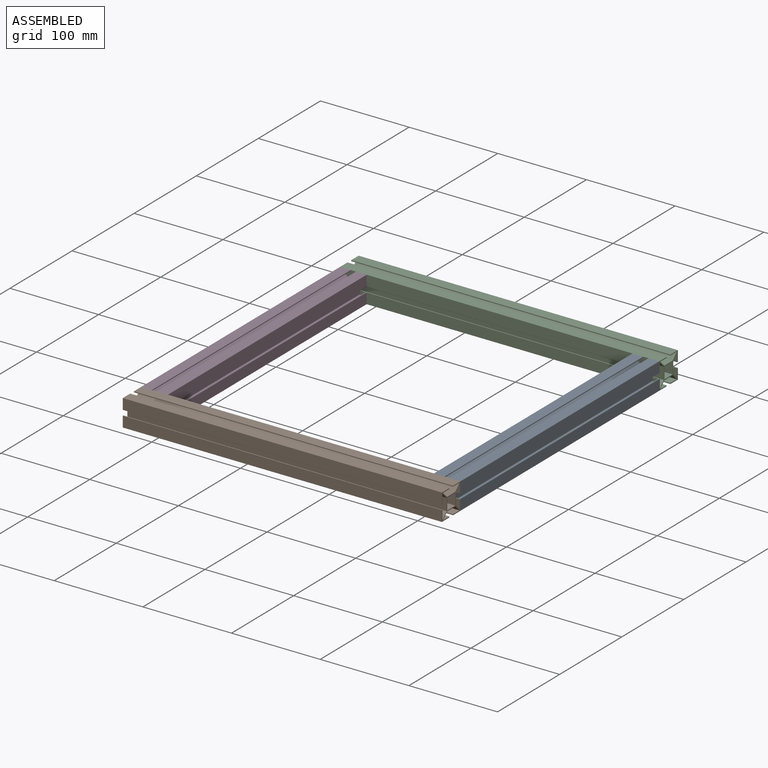
[diagram: assembled view]
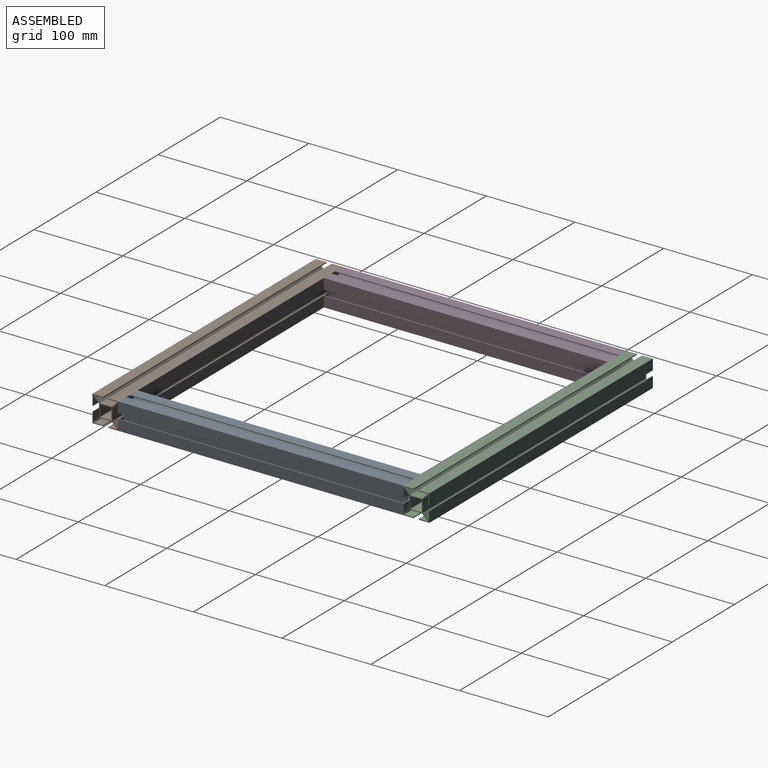
[diagram: assembled view, second angle]
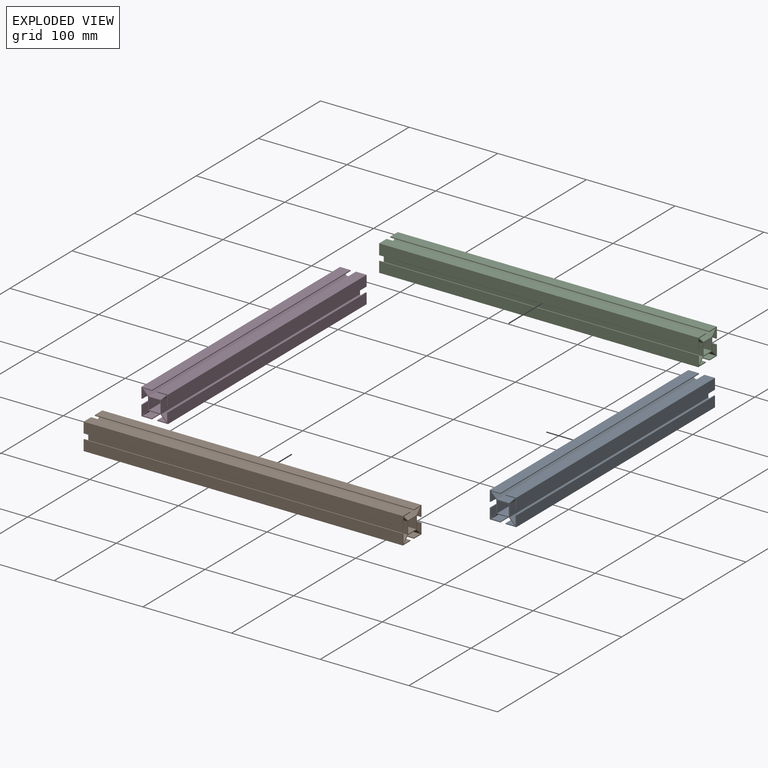
[diagram: exploded view]
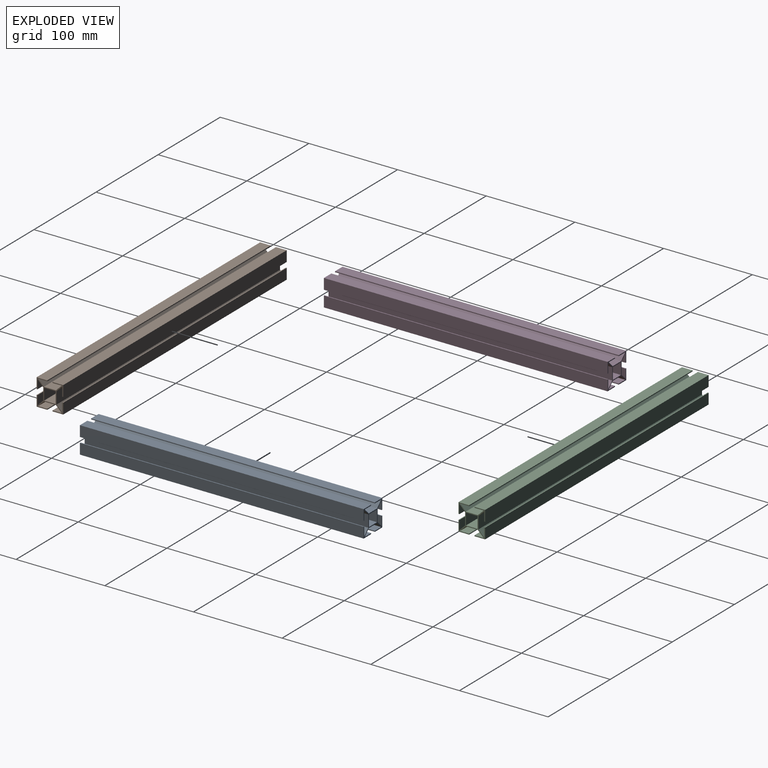
[diagram: exploded view, second angle]
ASSEMBLY  parts=4 mates=2
PART A: 42 faces, bbox 30x30x320 mm
  f0: plane 320x13mm, normal (-1,0,0), area 4160mm2, adj f1,f39,f40,f41
  f1: plane 320x13mm, normal (0,1,0), area 4160mm2, adj f0,f2,f40,f41
  f2: plane 320x13mm, normal (1,0,0), area 4160mm2, adj f1,f39,f40,f41
  f3: plane 320x1mm, normal (0,-1,0), area 320mm2, adj f4,f38,f40,f41
  f4: plane 320x12mm, normal (1,0,0), area 3840mm2, adj f3,f5,f40,f41
  f5: plane 320x12mm, normal (0,1,0), area 3840mm2, adj f4,f6,f40,f41
  f6: plane 320x1mm, normal (-1,0,0), area 320mm2, adj f5,f7,f40,f41
  f7: plane 320x10.29mm, normal (0,-1,0), area 3293.7mm2, adj f6,f8,f40,f41
  f8: plane 320x6.5mm, normal (-0.71,0.71,0), area 2941.6mm2, adj f7,f9,f40,f41
  f9: plane 320x13.59mm, normal (0,1,0), area 4347.5mm2, adj f8,f10,f40,f41
  f10: plane 320x6.5mm, normal (0.71,0.71,0), area 2941.6mm2, adj f9,f11,f40,f41
  f11: plane 320x10.29mm, normal (0,-1,0), area 3293.7mm2, adj f10,f12,f40,f41
  f12: plane 320x1mm, normal (1,0,0), area 320mm2, adj f11,f13,f40,f41
  f13: plane 320x12mm, normal (0,1,0), area 3840mm2, adj f12,f14,f40,f41
  f14: plane 320x12mm, normal (-1,0,0), area 3840mm2, adj f13,f15,f40,f41
  f15: plane 320x1mm, normal (0,-1,0), area 320mm2, adj f14,f16,f40,f41
  f16: plane 320x10.29mm, normal (1,0,0), area 3293.7mm2, adj f15,f17,f40,f41
  f17: plane 320x6.5mm, normal (-0.71,-0.71,0), area 2941.6mm2, adj f16,f18,f40,f41
  f18: plane 320x13.59mm, normal (-1,0,0), area 4347.5mm2, adj f17,f19,f40,f41
  f19: plane 320x6.5mm, normal (-0.71,0.71,0), area 2941.6mm2, adj f18,f20,f40,f41
  f20: plane 320x10.29mm, normal (1,0,0), area 3293.7mm2, adj f19,f21,f40,f41
  f21: plane 320x1mm, normal (0,1,0), area 320mm2, adj f20,f22,f40,f41
  f22: plane 320x12mm, normal (-1,0,0), area 3840mm2, adj f21,f23,f40,f41
  f23: plane 320x12mm, normal (0,-1,0), area 3840mm2, adj f22,f24,f40,f41
  f24: plane 320x1mm, normal (1,0,0), area 320mm2, adj f23,f25,f40,f41
  f25: plane 320x10.29mm, normal (0,1,0), area 3293.7mm2, adj f24,f26,f40,f41
  f26: plane 320x6.5mm, normal (0.71,-0.71,0), area 2941.6mm2, adj f25,f27,f40,f41
  f27: plane 320x13.59mm, normal (0,-1,0), area 4347.5mm2, adj f26,f28,f40,f41
  f28: plane 320x6.5mm, normal (-0.71,-0.71,0), area 2941.6mm2, adj f27,f29,f40,f41
  f29: plane 320x10.29mm, normal (0,1,0), area 3293.7mm2, adj f28,f30,f40,f41
  f30: plane 320x1mm, normal (-1,0,0), area 320mm2, adj f29,f31,f40,f41
  f31: plane 320x12mm, normal (0,-1,0), area 3840mm2, adj f30,f32,f40,f41
  f32: plane 320x12mm, normal (1,0,0), area 3840mm2, adj f31,f33,f40,f41
  f33: plane 320x1mm, normal (0,1,0), area 320mm2, adj f32,f34,f40,f41
  f34: plane 320x10.29mm, normal (-1,0,0), area 3293.7mm2, adj f33,f35,f40,f41
  f35: plane 320x6.5mm, normal (0.71,0.71,0), area 2941.6mm2, adj f34,f36,f40,f41
  f36: plane 320x13.59mm, normal (1,0,0), area 4347.5mm2, adj f35,f37,f40,f41
  f37: plane 320x6.5mm, normal (0.71,-0.71,0), area 2941.6mm2, adj f36,f38,f40,f41
  f38: plane 320x10.29mm, normal (-1,0,0), area 3293.7mm2, adj f3,f37,f40,f41
  f39: plane 320x13mm, normal (0,-1,0), area 4160mm2, adj f0,f2,f40,f41
  f40: plane 30x30mm, normal (0,0,1), area 184.8mm2, adj f0,f1,f2,f3,f4,f5,f6,f7
  f41: plane 30x30mm, normal (0,0,-1), area 184.8mm2, adj f0,f1,f2,f3,f4,f5,f6,f7
PART B: 42 faces, bbox 360x30x30 mm
  f0: plane 360x13mm, normal (0,-1,0), area 4680mm2, adj f1,f39,f40,f41
  f1: plane 360x13mm, normal (0,0,1), area 4680mm2, adj f0,f2,f40,f41
  f2: plane 360x13mm, normal (0,1,0), area 4680mm2, adj f1,f39,f40,f41
  f3: plane 360x1mm, normal (0,0,-1), area 360mm2, adj f4,f38,f40,f41
  f4: plane 360x12mm, normal (0,1,0), area 4320mm2, adj f3,f5,f40,f41
  f5: plane 360x12mm, normal (0,0,1), area 4320mm2, adj f4,f6,f40,f41
  f6: plane 360x1mm, normal (0,-1,0), area 360mm2, adj f5,f7,f40,f41
  f7: plane 360x10.29mm, normal (0,0,-1), area 3705.4mm2, adj f6,f8,f40,f41
  f8: plane 360x6.5mm, normal (0,-0.71,0.71), area 3309.3mm2, adj f7,f9,f40,f41
  f9: plane 360x13.59mm, normal (0,0,1), area 4890.9mm2, adj f8,f10,f40,f41
  f10: plane 360x6.5mm, normal (0,0.71,0.71), area 3309.3mm2, adj f9,f11,f40,f41
  f11: plane 360x10.29mm, normal (0,0,-1), area 3705.4mm2, adj f10,f12,f40,f41
  f12: plane 360x1mm, normal (0,1,0), area 360mm2, adj f11,f13,f40,f41
  f13: plane 360x12mm, normal (0,0,1), area 4320mm2, adj f12,f14,f40,f41
  f14: plane 360x12mm, normal (0,-1,0), area 4320mm2, adj f13,f15,f40,f41
  f15: plane 360x1mm, normal (0,0,-1), area 360mm2, adj f14,f16,f40,f41
  f16: plane 360x10.29mm, normal (0,1,0), area 3705.4mm2, adj f15,f17,f40,f41
  f17: plane 360x6.5mm, normal (0,-0.71,-0.71), area 3309.3mm2, adj f16,f18,f40,f41
  f18: plane 360x13.59mm, normal (0,-1,0), area 4890.9mm2, adj f17,f19,f40,f41
  f19: plane 360x6.5mm, normal (0,-0.71,0.71), area 3309.3mm2, adj f18,f20,f40,f41
  f20: plane 360x10.29mm, normal (0,1,0), area 3705.4mm2, adj f19,f21,f40,f41
  f21: plane 360x1mm, normal (0,0,1), area 360mm2, adj f20,f22,f40,f41
  f22: plane 360x12mm, normal (0,-1,0), area 4320mm2, adj f21,f23,f40,f41
  f23: plane 360x12mm, normal (0,0,-1), area 4320mm2, adj f22,f24,f40,f41
  f24: plane 360x1mm, normal (0,1,0), area 360mm2, adj f23,f25,f40,f41
  f25: plane 360x10.29mm, normal (0,0,1), area 3705.4mm2, adj f24,f26,f40,f41
  f26: plane 360x6.5mm, normal (0,0.71,-0.71), area 3309.3mm2, adj f25,f27,f40,f41
  f27: plane 360x13.59mm, normal (0,0,-1), area 4890.9mm2, adj f26,f28,f40,f41
  f28: plane 360x6.5mm, normal (0,-0.71,-0.71), area 3309.3mm2, adj f27,f29,f40,f41
  f29: plane 360x10.29mm, normal (0,0,1), area 3705.4mm2, adj f28,f30,f40,f41
  f30: plane 360x1mm, normal (0,-1,0), area 360mm2, adj f29,f31,f40,f41
  f31: plane 360x12mm, normal (0,0,-1), area 4320mm2, adj f30,f32,f40,f41
  f32: plane 360x12mm, normal (0,1,0), area 4320mm2, adj f31,f33,f40,f41
  f33: plane 360x1mm, normal (0,0,1), area 360mm2, adj f32,f34,f40,f41
  f34: plane 360x10.29mm, normal (0,-1,0), area 3705.4mm2, adj f33,f35,f40,f41
  f35: plane 360x6.5mm, normal (0,0.71,0.71), area 3309.3mm2, adj f34,f36,f40,f41
  f36: plane 360x13.59mm, normal (0,1,0), area 4890.9mm2, adj f35,f37,f40,f41
  f37: plane 360x6.5mm, normal (0,0.71,-0.71), area 3309.3mm2, adj f36,f38,f40,f41
  f38: plane 360x10.29mm, normal (0,-1,0), area 3705.4mm2, adj f3,f37,f40,f41
  f39: plane 360x13mm, normal (0,0,-1), area 4680mm2, adj f0,f2,f40,f41
  f40: plane 30x30mm, normal (1,0,0), area 184.8mm2, adj f0,f1,f2,f3,f4,f5,f6,f7
  f41: plane 30x30mm, normal (-1,0,0), area 184.8mm2, adj f0,f1,f2,f3,f4,f5,f6,f7
PART C: same geometry as B
PART D: same geometry as A
PLACE A rot(axis=(1,0,0),90deg) t=(115.54,218.16,-40.49)mm
PLACE B t=(-36.96,13.16,-33.99)mm
PLACE C t=(-36.96,363.16,-33.99)mm
PLACE D rot(axis=(-1,0,0),90deg) t=(-214.46,155.16,-27.49)mm
MATE fastened B.f4 <-> A.f40  axis (0,1,0) through (129.54,26.66,-18.99)mm
MATE fastened C.f14 <-> D.f40  axis (0,-1,0) through (-230.46,346.66,-18.99)mm
